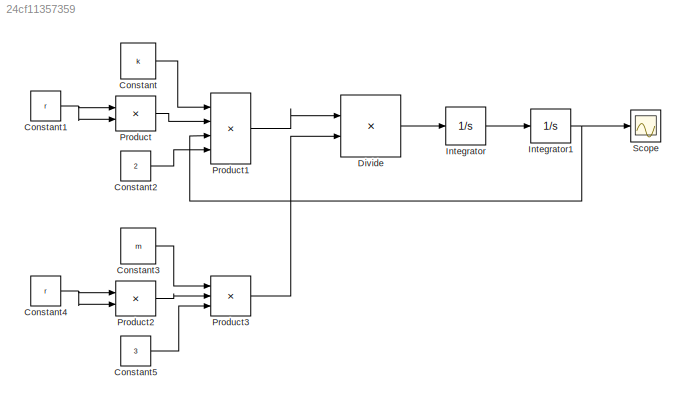
MODEL slx_24cf11357359
KIND model
CONFIG AbsTol = auto
CONFIG EnableMultiTasking = off
CONFIG FixedStep = auto
CONFIG MaxStep = auto
CONFIG MinStep = auto
CONFIG RelTol = 1e-3
CONFIG SampleTimeConstraint = Unconstrained
CONFIG SolverName = VariableStepAuto
CONFIG StartTime = 0.0
CONFIG StopTime = 10.0
BLOCK [Constant] Constant
  Value = k
BLOCK [Constant] Constant1
  Value = r
BLOCK [Constant] Constant2
  Value = 2
BLOCK [Constant] Constant3
  Value = m
BLOCK [Constant] Constant4
  Value = r
BLOCK [Constant] Constant5
  Value = 3
BLOCK [Product] Divide
  Inputs = */
BLOCK [Integrator] Integrator
  InitialCondition = 2
BLOCK [Integrator] Integrator1
BLOCK [Product] Product
BLOCK [Product] Product1
  Inputs = 4
BLOCK [Product] Product2
BLOCK [Product] Product3
  Inputs = 3
BLOCK [Scope] Scope
  ActiveDisplayYMaximum = 1
  ActiveDisplayYMinimum = -1
  Floating = off
  GraphicalSettings = {"Style":{"BackgroundColor":[0.12941176470588237,0.12941176470588237,0.12941176470588237],"AxesColor":[0.07058823529411765,0.07058823529411765,0.07058823529411765],"LabelsColor":[0.8509803921568627,0.8509803921568627,0.8509803921568627],"PreserveColors":false,"Visible":[true],"LineStyle":["-"],"LineWidth":[1.5],"BarWidth":[0.9],"LineColor":["auto"],"LineFaceAlpha":[1],"LineEdgeAlpha":[1],"Marker":...<+1904ch>
  MultipleDisplayCache = [{"MaxYLimMag":1,"MaxYLimReal":1,"MinYLimMag":0,"MinYLimReal":-1,"PlotAsMagnitudePhase":false,"ShowGrid":true,"ShowLegend":false,"Title":"%<SignalLabel>","YLabel":""}]
  NumInputPorts = 1
  ScopeFrameLocation = window
  WasSavedAsWebScope = on
  WindowPosition = [520.000000,323.000000,560.000000,420.000000,]
NET Constant1:1 -> Product:1, Product:2
LINE Constant2:1 -> Product1:4
LINE Constant3:1 -> Product3:1
NET Constant4:1 -> Product2:1, Product2:2
LINE Constant5:1 -> Product3:3
LINE Constant:1 -> Product1:1
LINE Divide:1 -> Integrator:1
NET Integrator1:1 -> Product1:3, Scope:1
LINE Integrator:1 -> Integrator1:1
LINE Product1:1 -> Divide:1
LINE Product2:1 -> Product3:2
LINE Product3:1 -> Divide:2
LINE Product:1 -> Product1:2
note: NET lines group one-source signal fan-out (src -> all destinations, sorted); 1:1 wires keep LINE
